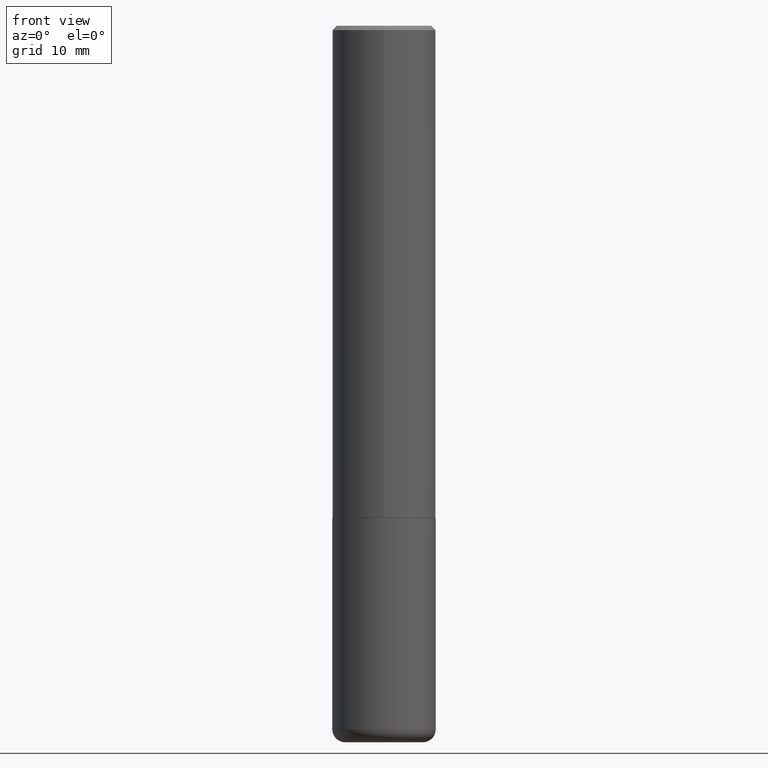
[diagram: clean part render]
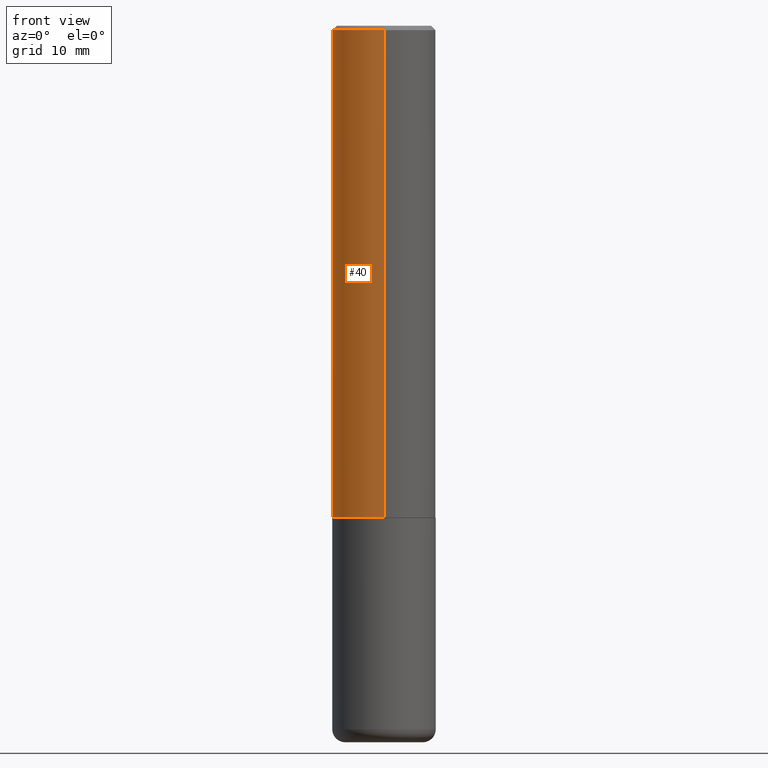
[diagram: same view with one face highlighted and labeled with its STEP entity id]
A machine part, front view. The second image highlights one B-rep face of the part: STEP entity #40.
In plain terms, the highlighted cylindrical surface (partial cylindrical patch) has radius 5.9995 mm, axis along (-0, 0, 1).
Its self-contained STEP definition (entity closure, byte-faithful):
#8 = AXIS2_PLACEMENT_3D ( 'NONE', #83, #178, #42 ) ;
#12 = VERTEX_POINT ( 'NONE', #412 ) ;
#40 = ADVANCED_FACE ( 'NONE', ( #194 ), #403, .T. ) ;
#42 = DIRECTION ( 'NONE',  ( -6.982962677686265922E-15, -1.000000000000000000, 3.492051882233377311E-15 ) ) ;
#56 = ORIENTED_EDGE ( 'NONE', *, *, #107, .F. ) ;
#70 = AXIS2_PLACEMENT_3D ( 'NONE', #189, #90, #157 ) ;
#83 = CARTESIAN_POINT ( 'NONE',  ( 0.000000000000000000, 0.000000000000000000, 0.000000000000000000 ) ) ;
#88 = DIRECTION ( 'NONE',  ( -2.445070397865137758E-29, 3.492051882233377311E-15, 1.000000000000000000 ) ) ;
#90 = DIRECTION ( 'NONE',  ( -2.445070397865137758E-29, 3.492051882233377311E-15, 1.000000000000000000 ) ) ;
#92 = CARTESIAN_POINT ( 'NONE',  ( 5.484537409451290549E-29, -7.833021577037690175E-15, -2.243100000000000094 ) ) ;
#107 = EDGE_CURVE ( 'NONE', #394, #364, #396, .T. ) ;
#109 = DIRECTION ( 'NONE',  ( -2.445070397865137758E-29, 3.492051882233377311E-15, 1.000000000000000000 ) ) ;
#118 = CARTESIAN_POINT ( 'NONE',  ( -1.649375784469497117E-15, -0.2362000000000001598, 8.248226545835243120E-16 ) ) ;
#134 = CARTESIAN_POINT ( 'NONE',  ( 1.678301941865357577E-15, 0.2362000000000001598, -8.248226545835243120E-16 ) ) ;
#147 = VECTOR ( 'NONE', #109, 39.37007874015748143 ) ;
#154 = EDGE_LOOP ( 'NONE', ( #56, #268, #351, #335 ) ) ;
#157 = DIRECTION ( 'NONE',  ( -6.982962677686265922E-15, -1.000000000000000000, 3.487819265831410167E-15 ) ) ;
#178 = DIRECTION ( 'NONE',  ( -2.445070397865137758E-29, 3.492051882233377311E-15, 1.000000000000000000 ) ) ;
#189 = CARTESIAN_POINT ( 'NONE',  ( 4.890140795730287848E-31, -6.984103764466771238E-17, -0.02000000000000005246 ) ) ;
#194 = FACE_OUTER_BOUND ( 'NONE', #154, .T. ) ;
#213 = EDGE_CURVE ( 'NONE', #12, #221, #411, .T. ) ;
#216 = CIRCLE ( 'NONE', #323, 0.2362000000000002709 ) ;
#221 = VERTEX_POINT ( 'NONE', #248 ) ;
#222 = DIRECTION ( 'NONE',  ( -2.445070397865137758E-29, 3.492051882233377311E-15, 1.000000000000000000 ) ) ;
#245 = VECTOR ( 'NONE', #88, 39.37007874015748143 ) ;
#248 = CARTESIAN_POINT ( 'NONE',  ( -1.620449627073635473E-15, -0.2362000000000001321, -0.01999999999999922673 ) ) ;
#259 = EDGE_CURVE ( 'NONE', #364, #221, #367, .T. ) ;
#268 = ORIENTED_EDGE ( 'NONE', *, *, #348, .T. ) ;
#292 = CARTESIAN_POINT ( 'NONE',  ( 1.649375784469496920E-15, 0.2361999999999999933, -0.02000000000000087472 ) ) ;
#293 = CARTESIAN_POINT ( 'NONE',  ( 1.678301941865385779E-15, 0.2361999999999924715, -2.243100000000000982 ) ) ;
#309 = DIRECTION ( 'NONE',  ( -6.982962677686265922E-15, -1.000000000000000000, 3.469747663417773058E-15 ) ) ;
#323 = AXIS2_PLACEMENT_3D ( 'NONE', #92, #222, #309 ) ;
#335 = ORIENTED_EDGE ( 'NONE', *, *, #259, .F. ) ;
#348 = EDGE_CURVE ( 'NONE', #394, #12, #216, .T. ) ;
#351 = ORIENTED_EDGE ( 'NONE', *, *, #213, .T. ) ;
#364 = VERTEX_POINT ( 'NONE', #292 ) ;
#367 = CIRCLE ( 'NONE', #70, 0.2362000000000000766 ) ;
#394 = VERTEX_POINT ( 'NONE', #293 ) ;
#396 = LINE ( 'NONE', #134, #147 ) ;
#403 = CYLINDRICAL_SURFACE ( 'NONE', #8, 0.2362000000000001598 ) ;
#411 = LINE ( 'NONE', #118, #245 ) ;
#412 = CARTESIAN_POINT ( 'NONE',  ( -1.649375784469443080E-15, -0.2362000000000080979, -2.243099999999999206 ) ) ;